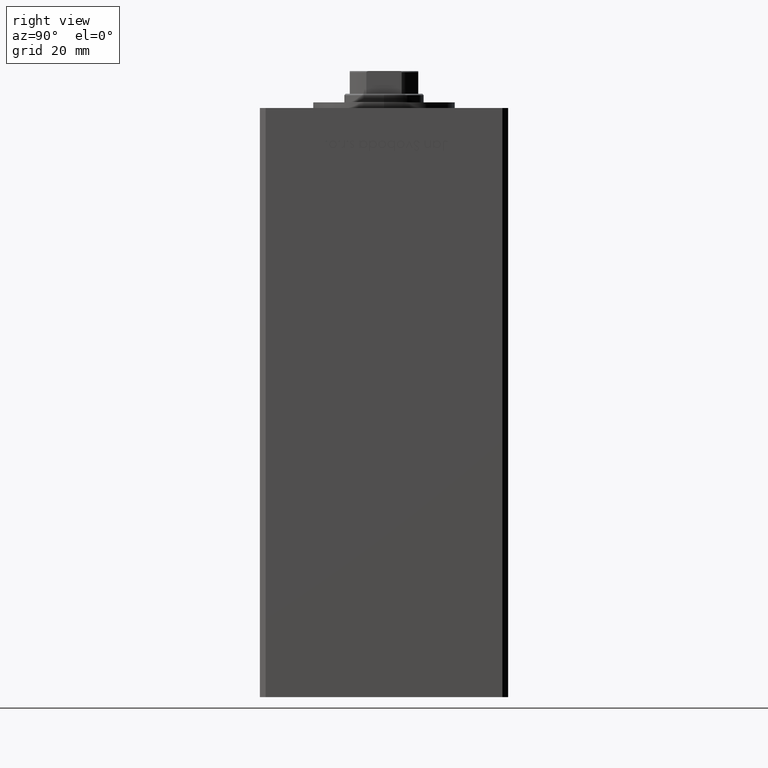
[diagram: clean part render]
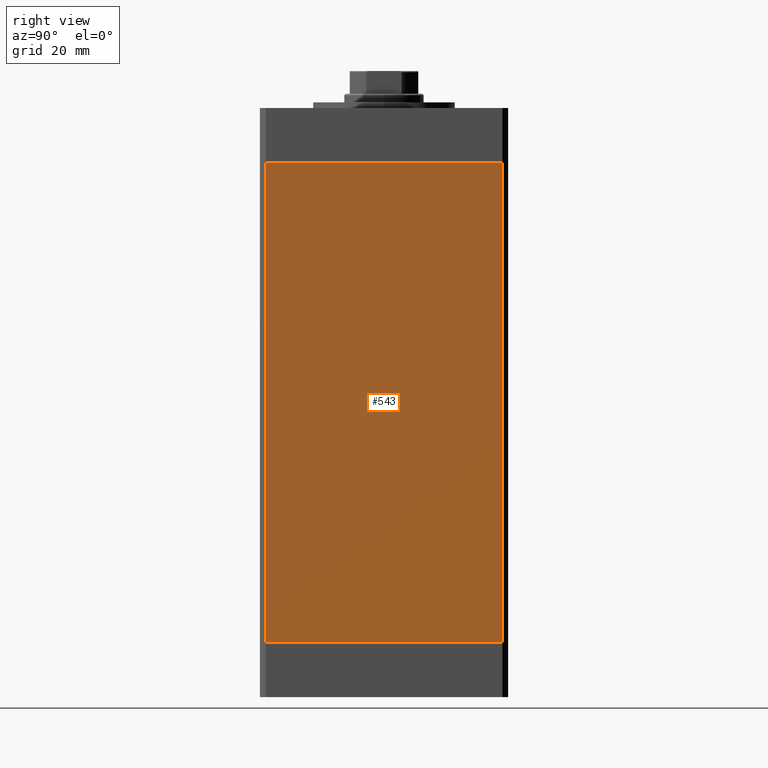
[diagram: same view with one face highlighted and labeled with its STEP entity id]
A machine part, right view. The second image highlights one B-rep face of the part: STEP entity #543.
In plain terms, the highlighted planar face has unit normal (1, -0, 0).
Its self-contained STEP definition (entity closure, byte-faithful):
#543 = ADVANCED_FACE ( 'NONE', ( #24792 ), #4746, .T. ) ;
#1856 = DIRECTION ( 'NONE',  ( -3.344045254895050973E-16, -1.000000000000000000, 0.000000000000000000 ) ) ;
#3541 = LINE ( 'NONE', #19639, #34083 ) ;
#4746 = PLANE ( 'NONE',  #36044 ) ;
#4749 = VERTEX_POINT ( 'NONE', #20683 ) ;
#6973 = ORIENTED_EDGE ( 'NONE', *, *, #49569, .T. ) ;
#7194 = VERTEX_POINT ( 'NONE', #30224 ) ;
#8453 = CARTESIAN_POINT ( 'NONE',  ( 50.00000000000001421, 41.49999999999999289, 0.000000000000000000 ) ) ;
#10471 = VECTOR ( 'NONE', #15576, 1000.000000000000000 ) ;
#12936 = CARTESIAN_POINT ( 'NONE',  ( 50.00000000000001421, 41.49999999999999289, 168.5000000000000000 ) ) ;
#13706 = EDGE_LOOP ( 'NONE', ( #40361, #36702, #44122, #6973 ) ) ;
#15576 = DIRECTION ( 'NONE',  ( -3.344045254895050973E-16, -1.000000000000000000, 0.000000000000000000 ) ) ;
#19639 = CARTESIAN_POINT ( 'NONE',  ( 50.00000000000001421, 41.49999999999999289, 168.5000000000000000 ) ) ;
#19659 = EDGE_CURVE ( 'NONE', #46416, #4749, #27700, .T. ) ;
#20683 = CARTESIAN_POINT ( 'NONE',  ( 49.99999999999998579, -41.49999999999999289, 0.000000000000000000 ) ) ;
#20975 = VECTOR ( 'NONE', #49009, 1000.000000000000000 ) ;
#21694 = CARTESIAN_POINT ( 'NONE',  ( 49.99999999999998579, -41.49999999999999289, 168.5000000000000000 ) ) ;
#22137 = DIRECTION ( 'NONE',  ( 3.344045254895050973E-16, 1.000000000000000000, 0.000000000000000000 ) ) ;
#24091 = VERTEX_POINT ( 'NONE', #21694 ) ;
#24792 = FACE_OUTER_BOUND ( 'NONE', #13706, .T. ) ;
#25909 = VECTOR ( 'NONE', #1856, 1000.000000000000000 ) ;
#26838 = CARTESIAN_POINT ( 'NONE',  ( 50.00000000000001421, 41.49999999999999289, 168.5000000000000000 ) ) ;
#27700 = LINE ( 'NONE', #8453, #10471 ) ;
#28951 = CARTESIAN_POINT ( 'NONE',  ( 49.99999999999998579, -41.49999999999999289, 168.5000000000000000 ) ) ;
#30224 = CARTESIAN_POINT ( 'NONE',  ( 50.00000000000001421, 41.49999999999999289, 168.5000000000000000 ) ) ;
#30549 = DIRECTION ( 'NONE',  ( 1.000000000000000000, -3.344045254895050973E-16, 0.000000000000000000 ) ) ;
#33040 = EDGE_CURVE ( 'NONE', #7194, #46416, #3541, .T. ) ;
#34083 = VECTOR ( 'NONE', #35723, 1000.000000000000000 ) ;
#35678 = CARTESIAN_POINT ( 'NONE',  ( 50.00000000000001421, 41.49999999999999289, 0.000000000000000000 ) ) ;
#35723 = DIRECTION ( 'NONE',  ( -0.000000000000000000, -0.000000000000000000, -1.000000000000000000 ) ) ;
#36044 = AXIS2_PLACEMENT_3D ( 'NONE', #26838, #30549, #22137 ) ;
#36702 = ORIENTED_EDGE ( 'NONE', *, *, #33040, .F. ) ;
#40361 = ORIENTED_EDGE ( 'NONE', *, *, #19659, .F. ) ;
#41596 = EDGE_CURVE ( 'NONE', #7194, #24091, #45403, .T. ) ;
#44122 = ORIENTED_EDGE ( 'NONE', *, *, #41596, .T. ) ;
#45403 = LINE ( 'NONE', #12936, #25909 ) ;
#46416 = VERTEX_POINT ( 'NONE', #35678 ) ;
#49009 = DIRECTION ( 'NONE',  ( -0.000000000000000000, -0.000000000000000000, -1.000000000000000000 ) ) ;
#49569 = EDGE_CURVE ( 'NONE', #24091, #4749, #51659, .T. ) ;
#51659 = LINE ( 'NONE', #28951, #20975 ) ;